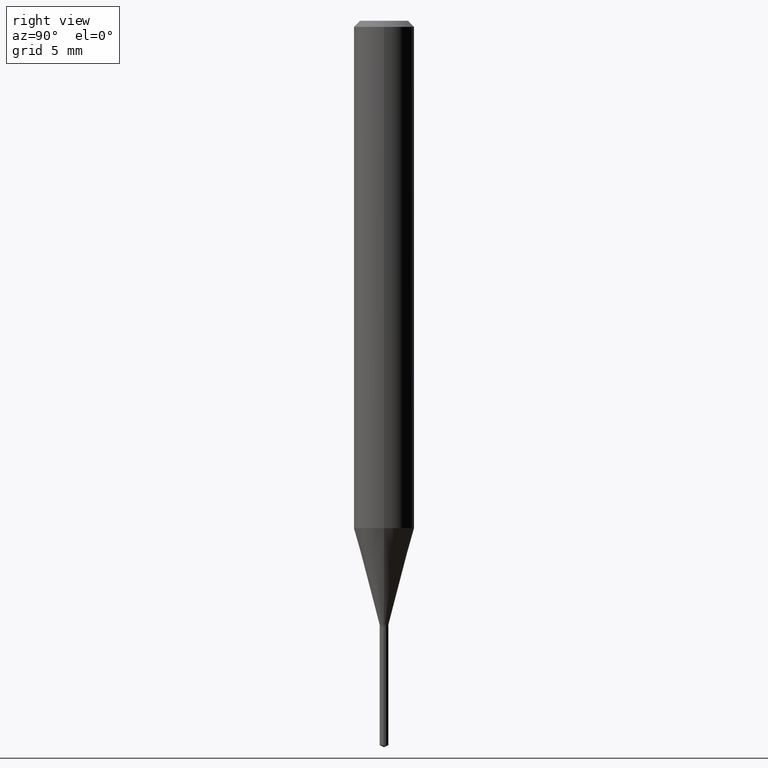
[diagram: clean part render]
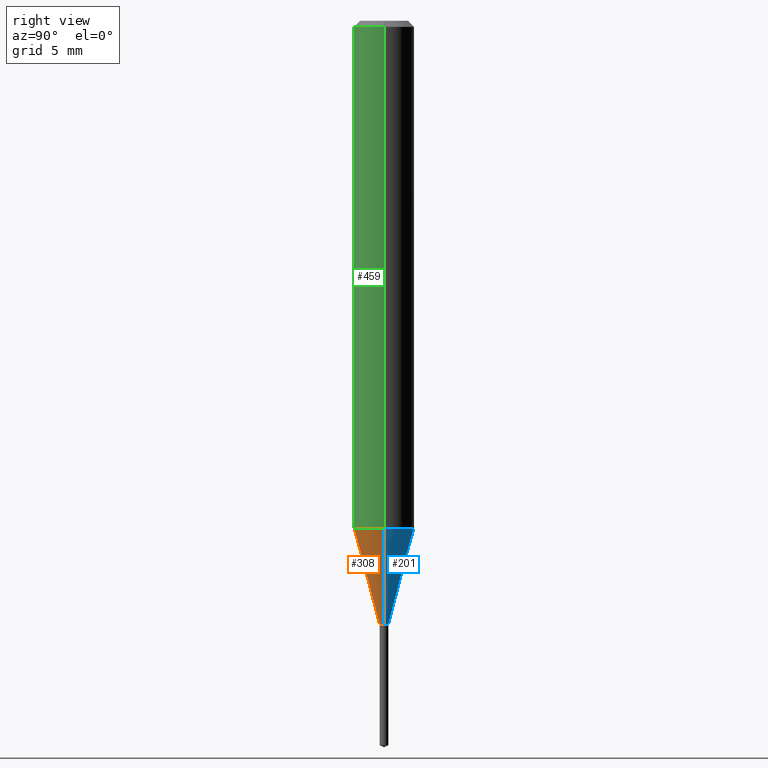
[diagram: same view with three faces highlighted in distinct colors, each labeled with its STEP entity id]
A machine part, right view with three faces highlighted in distinct colors.
Their STEP definitions:

[orange] entity #308 — the highlighted conical surface has half-angle 15 deg.
#19 = CARTESIAN_POINT ( 'NONE',  ( -0.06250000000000013878, -3.213709826451086703E-15, -1.047635281795065154 ) ) ;
#31 = VECTOR ( 'NONE', #330, 39.37007874015748854 ) ;
#36 = EDGE_CURVE ( 'NONE', #65, #120, #333, .T. ) ;
#48 = EDGE_CURVE ( 'NONE', #479, #216, #210, .T. ) ;
#51 = AXIS2_PLACEMENT_3D ( 'NONE', #102, #130, #217 ) ;
#57 = DIRECTION ( 'NONE',  ( -2.445468806185136597E-29, 3.491481338843145583E-15, 1.000000000000000000 ) ) ;
#65 = VERTEX_POINT ( 'NONE', #166 ) ;
#67 = ORIENTED_EDGE ( 'NONE', *, *, #48, .T. ) ;
#91 = VECTOR ( 'NONE', #432, 39.37007874015748854 ) ;
#102 = CARTESIAN_POINT ( 'NONE',  ( 2.561959401888807010E-29, -3.657799036301150108E-15, -1.047635281795065154 ) ) ;
#112 = CARTESIAN_POINT ( 'NONE',  ( 0.06250000000000013878, -4.094234203656543355E-15, -1.047635281795065154 ) ) ;
#118 = EDGE_CURVE ( 'NONE', #65, #479, #149, .T. ) ;
#120 = VERTEX_POINT ( 'NONE', #19 ) ;
#130 = DIRECTION ( 'NONE',  ( -2.445468806185136597E-29, 3.491481338843145583E-15, 1.000000000000000000 ) ) ;
#141 = CARTESIAN_POINT ( 'NONE',  ( 0.009000000000000016667, -4.417771338038232847E-15, -1.247300000000000075 ) ) ;
#143 = AXIS2_PLACEMENT_3D ( 'NONE', #250, #57, #207 ) ;
#149 = CIRCLE ( 'NONE', #143, 0.009000000000000016667 ) ;
#166 = CARTESIAN_POINT ( 'NONE',  ( -0.009000000000000016667, -4.294816457193374586E-15, -1.247300000000000075 ) ) ;
#202 = CARTESIAN_POINT ( 'NONE',  ( 3.050233241954721412E-29, -4.354924673939055563E-15, -1.247300000000000075 ) ) ;
#205 = ORIENTED_EDGE ( 'NONE', *, *, #36, .F. ) ;
#207 = DIRECTION ( 'NONE',  ( 1.000000000000000000, -6.982962677686320353E-15, 0.000000000000000000 ) ) ;
#210 = LINE ( 'NONE', #141, #91 ) ;
#216 = VERTEX_POINT ( 'NONE', #112 ) ;
#217 = DIRECTION ( 'NONE',  ( 1.000000000000000000, -6.982962677686264344E-15, 0.000000000000000000 ) ) ;
#240 = EDGE_LOOP ( 'NONE', ( #205, #277, #67, #293 ) ) ;
#250 = CARTESIAN_POINT ( 'NONE',  ( 3.050233241954721412E-29, -4.354924673939055563E-15, -1.247300000000000075 ) ) ;
#274 = CIRCLE ( 'NONE', #51, 0.06250000000000012490 ) ;
#277 = ORIENTED_EDGE ( 'NONE', *, *, #118, .T. ) ;
#278 = FACE_OUTER_BOUND ( 'NONE', #240, .T. ) ;
#293 = ORIENTED_EDGE ( 'NONE', *, *, #469, .F. ) ;
#308 = ADVANCED_FACE ( 'NONE', ( #278 ), #471, .T. ) ;
#330 = DIRECTION ( 'NONE',  ( -0.2588190451025211836, 5.211531920934547886E-15, 0.9659258262890679791 ) ) ;
#333 = LINE ( 'NONE', #365, #31 ) ;
#348 = DIRECTION ( 'NONE',  ( 1.000000000000000000, -6.982962677686320353E-15, 0.000000000000000000 ) ) ;
#364 = CARTESIAN_POINT ( 'NONE',  ( 0.009000000000000016667, -4.417771338038232847E-15, -1.247300000000000075 ) ) ;
#365 = CARTESIAN_POINT ( 'NONE',  ( -0.009000000000000016667, -4.290975827720646490E-15, -1.247300000000000075 ) ) ;
#424 = DIRECTION ( 'NONE',  ( -2.445468806185136597E-29, 3.491481338843145583E-15, 1.000000000000000000 ) ) ;
#430 = AXIS2_PLACEMENT_3D ( 'NONE', #202, #424, #348 ) ;
#432 = DIRECTION ( 'NONE',  ( 0.2588190451025211836, 1.565188264969622559E-15, 0.9659258262890679791 ) ) ;
#469 = EDGE_CURVE ( 'NONE', #120, #216, #274, .T. ) ;
#471 = CONICAL_SURFACE ( 'NONE', #430, 0.009000000000000016667, 0.2617993877991499074 ) ;
#479 = VERTEX_POINT ( 'NONE', #364 ) ;

[blue] entity #201 — the highlighted conical surface has half-angle 15 deg.
#5 = AXIS2_PLACEMENT_3D ( 'NONE', #40, #487, #441 ) ;
#19 = CARTESIAN_POINT ( 'NONE',  ( -0.06250000000000013878, -3.213709826451086703E-15, -1.047635281795065154 ) ) ;
#29 = CARTESIAN_POINT ( 'NONE',  ( 2.561959401888807010E-29, -3.657799036301150108E-15, -1.047635281795065154 ) ) ;
#31 = VECTOR ( 'NONE', #330, 39.37007874015748854 ) ;
#36 = EDGE_CURVE ( 'NONE', #65, #120, #333, .T. ) ;
#37 = FACE_OUTER_BOUND ( 'NONE', #128, .T. ) ;
#40 = CARTESIAN_POINT ( 'NONE',  ( 3.050233241954721412E-29, -4.354924673939055563E-15, -1.247300000000000075 ) ) ;
#48 = EDGE_CURVE ( 'NONE', #479, #216, #210, .T. ) ;
#60 = DIRECTION ( 'NONE',  ( -2.445468806185136597E-29, 3.491481338843145583E-15, 1.000000000000000000 ) ) ;
#65 = VERTEX_POINT ( 'NONE', #166 ) ;
#82 = EDGE_CURVE ( 'NONE', #216, #120, #154, .T. ) ;
#91 = VECTOR ( 'NONE', #432, 39.37007874015748854 ) ;
#112 = CARTESIAN_POINT ( 'NONE',  ( 0.06250000000000013878, -4.094234203656543355E-15, -1.047635281795065154 ) ) ;
#115 = CIRCLE ( 'NONE', #5, 0.009000000000000016667 ) ;
#120 = VERTEX_POINT ( 'NONE', #19 ) ;
#128 = EDGE_LOOP ( 'NONE', ( #138, #163, #402, #360 ) ) ;
#138 = ORIENTED_EDGE ( 'NONE', *, *, #176, .T. ) ;
#141 = CARTESIAN_POINT ( 'NONE',  ( 0.009000000000000016667, -4.417771338038232847E-15, -1.247300000000000075 ) ) ;
#147 = CARTESIAN_POINT ( 'NONE',  ( 3.050233241954721412E-29, -4.354924673939055563E-15, -1.247300000000000075 ) ) ;
#154 = CIRCLE ( 'NONE', #470, 0.06250000000000012490 ) ;
#163 = ORIENTED_EDGE ( 'NONE', *, *, #36, .T. ) ;
#166 = CARTESIAN_POINT ( 'NONE',  ( -0.009000000000000016667, -4.294816457193374586E-15, -1.247300000000000075 ) ) ;
#176 = EDGE_CURVE ( 'NONE', #479, #65, #115, .T. ) ;
#201 = ADVANCED_FACE ( 'NONE', ( #37 ), #346, .T. ) ;
#210 = LINE ( 'NONE', #141, #91 ) ;
#216 = VERTEX_POINT ( 'NONE', #112 ) ;
#258 = DIRECTION ( 'NONE',  ( 1.000000000000000000, -6.982962677686264344E-15, 0.000000000000000000 ) ) ;
#310 = AXIS2_PLACEMENT_3D ( 'NONE', #147, #415, #374 ) ;
#330 = DIRECTION ( 'NONE',  ( -0.2588190451025211836, 5.211531920934547886E-15, 0.9659258262890679791 ) ) ;
#333 = LINE ( 'NONE', #365, #31 ) ;
#346 = CONICAL_SURFACE ( 'NONE', #310, 0.009000000000000016667, 0.2617993877991499074 ) ;
#360 = ORIENTED_EDGE ( 'NONE', *, *, #48, .F. ) ;
#364 = CARTESIAN_POINT ( 'NONE',  ( 0.009000000000000016667, -4.417771338038232847E-15, -1.247300000000000075 ) ) ;
#365 = CARTESIAN_POINT ( 'NONE',  ( -0.009000000000000016667, -4.290975827720646490E-15, -1.247300000000000075 ) ) ;
#374 = DIRECTION ( 'NONE',  ( 1.000000000000000000, -6.982962677686320353E-15, 0.000000000000000000 ) ) ;
#402 = ORIENTED_EDGE ( 'NONE', *, *, #82, .F. ) ;
#415 = DIRECTION ( 'NONE',  ( -2.445468806185136597E-29, 3.491481338843145583E-15, 1.000000000000000000 ) ) ;
#432 = DIRECTION ( 'NONE',  ( 0.2588190451025211836, 1.565188264969622559E-15, 0.9659258262890679791 ) ) ;
#441 = DIRECTION ( 'NONE',  ( 1.000000000000000000, -6.982962677686320353E-15, 0.000000000000000000 ) ) ;
#470 = AXIS2_PLACEMENT_3D ( 'NONE', #29, #60, #258 ) ;
#479 = VERTEX_POINT ( 'NONE', #364 ) ;
#487 = DIRECTION ( 'NONE',  ( -2.445468806185136597E-29, 3.491481338843145583E-15, 1.000000000000000000 ) ) ;

[green] entity #459 — the highlighted cylindrical surface (edge-blend (fillet) strip) has radius 1.5875 mm, axis along (-0, 0, 1).
#1 = DIRECTION ( 'NONE',  ( -2.445468806185136877E-29, 3.491481338843145188E-15, 1.000000000000000000 ) ) ;
#17 = CARTESIAN_POINT ( 'NONE',  ( 0.06250000000000006939, -4.364351673553921624E-16, 3.047610484872463374E-30 ) ) ;
#19 = CARTESIAN_POINT ( 'NONE',  ( -0.06250000000000013878, -3.213709826451086703E-15, -1.047635281795065154 ) ) ;
#38 = CARTESIAN_POINT ( 'NONE',  ( -0.06250000000000006939, 4.440892098500631092E-16, -3.074334431409319267E-30 ) ) ;
#41 = EDGE_CURVE ( 'NONE', #216, #99, #295, .T. ) ;
#51 = AXIS2_PLACEMENT_3D ( 'NONE', #102, #130, #217 ) ;
#66 = FACE_OUTER_BOUND ( 'NONE', #411, .T. ) ;
#92 = CARTESIAN_POINT ( 'NONE',  ( 3.056836007731441415E-31, -4.364351673553961684E-17, -0.01250000000000008396 ) ) ;
#95 = DIRECTION ( 'NONE',  ( 1.000000000000000000, -6.982962677686266711E-15, 0.000000000000000000 ) ) ;
#99 = VERTEX_POINT ( 'NONE', #131 ) ;
#102 = CARTESIAN_POINT ( 'NONE',  ( 2.561959401888807010E-29, -3.657799036301150108E-15, -1.047635281795065154 ) ) ;
#112 = CARTESIAN_POINT ( 'NONE',  ( 0.06250000000000013878, -4.094234203656543355E-15, -1.047635281795065154 ) ) ;
#120 = VERTEX_POINT ( 'NONE', #19 ) ;
#130 = DIRECTION ( 'NONE',  ( -2.445468806185136597E-29, 3.491481338843145583E-15, 1.000000000000000000 ) ) ;
#131 = CARTESIAN_POINT ( 'NONE',  ( 0.06250000000000000000, -4.800786840909313294E-16, -0.01250000000000008396 ) ) ;
#134 = DIRECTION ( 'NONE',  ( -2.445468806185136877E-29, 3.491481338843145188E-15, 1.000000000000000000 ) ) ;
#172 = DIRECTION ( 'NONE',  ( -2.445468806185136597E-29, 3.491481338843145583E-15, 1.000000000000000000 ) ) ;
#175 = VERTEX_POINT ( 'NONE', #343 ) ;
#208 = CARTESIAN_POINT ( 'NONE',  ( 0.000000000000000000, 0.000000000000000000, 0.000000000000000000 ) ) ;
#216 = VERTEX_POINT ( 'NONE', #112 ) ;
#217 = DIRECTION ( 'NONE',  ( 1.000000000000000000, -6.982962677686264344E-15, 0.000000000000000000 ) ) ;
#229 = AXIS2_PLACEMENT_3D ( 'NONE', #208, #172, #476 ) ;
#246 = ORIENTED_EDGE ( 'NONE', *, *, #469, .T. ) ;
#274 = CIRCLE ( 'NONE', #51, 0.06250000000000012490 ) ;
#290 = EDGE_CURVE ( 'NONE', #120, #175, #490, .T. ) ;
#291 = DIRECTION ( 'NONE',  ( -2.445468806185136597E-29, 3.491481338843145583E-15, 1.000000000000000000 ) ) ;
#295 = LINE ( 'NONE', #17, #309 ) ;
#309 = VECTOR ( 'NONE', #134, 39.37007874015748143 ) ;
#326 = CYLINDRICAL_SURFACE ( 'NONE', #229, 0.06250000000000006939 ) ;
#343 = CARTESIAN_POINT ( 'NONE',  ( -0.06250000000000000000, -1.406632066668281035E-15, -0.01250000000000008396 ) ) ;
#362 = ORIENTED_EDGE ( 'NONE', *, *, #290, .F. ) ;
#408 = VECTOR ( 'NONE', #1, 39.37007874015748143 ) ;
#411 = EDGE_LOOP ( 'NONE', ( #362, #246, #481, #413 ) ) ;
#413 = ORIENTED_EDGE ( 'NONE', *, *, #450, .F. ) ;
#447 = AXIS2_PLACEMENT_3D ( 'NONE', #92, #291, #95 ) ;
#450 = EDGE_CURVE ( 'NONE', #175, #99, #461, .T. ) ;
#459 = ADVANCED_FACE ( 'NONE', ( #66 ), #326, .T. ) ;
#461 = CIRCLE ( 'NONE', #447, 0.06250000000000000000 ) ;
#469 = EDGE_CURVE ( 'NONE', #120, #216, #274, .T. ) ;
#476 = DIRECTION ( 'NONE',  ( 1.000000000000000000, -6.982962677686266711E-15, 4.876176775795935793E-29 ) ) ;
#481 = ORIENTED_EDGE ( 'NONE', *, *, #41, .T. ) ;
#490 = LINE ( 'NONE', #38, #408 ) ;